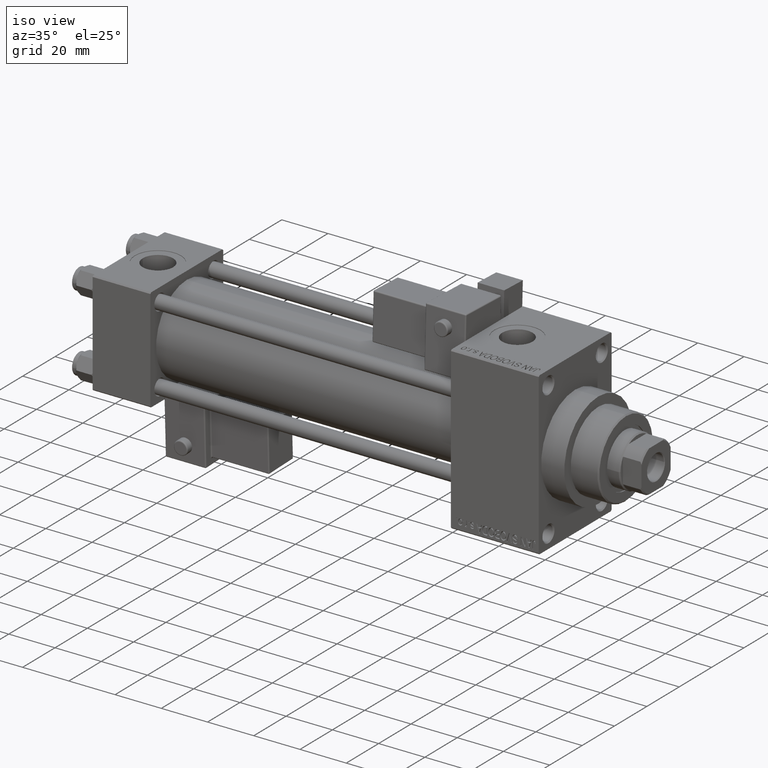
[diagram: clean part render]
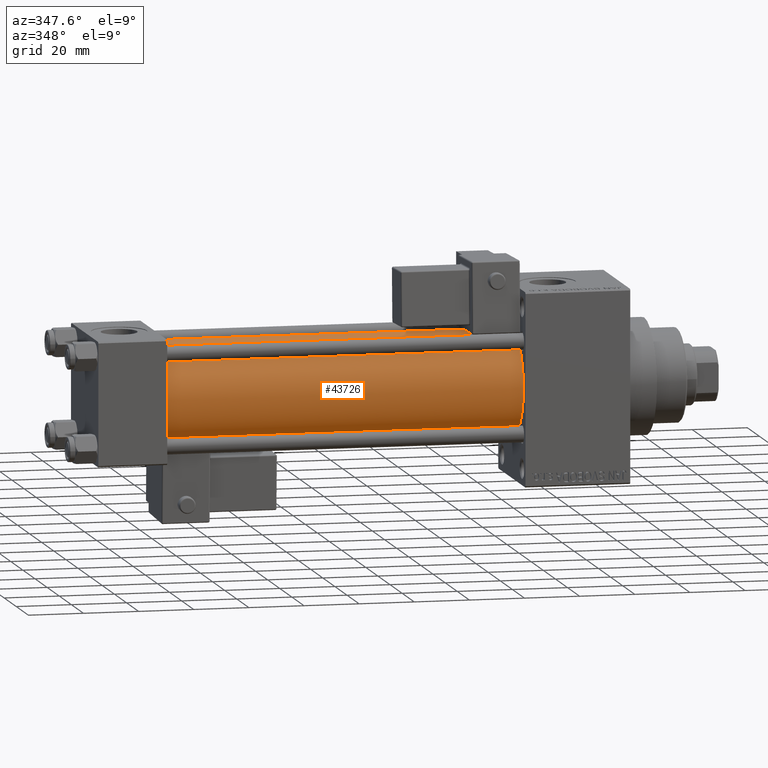
[diagram: tour spotlight — one face highlighted and labeled with its STEP entity id]
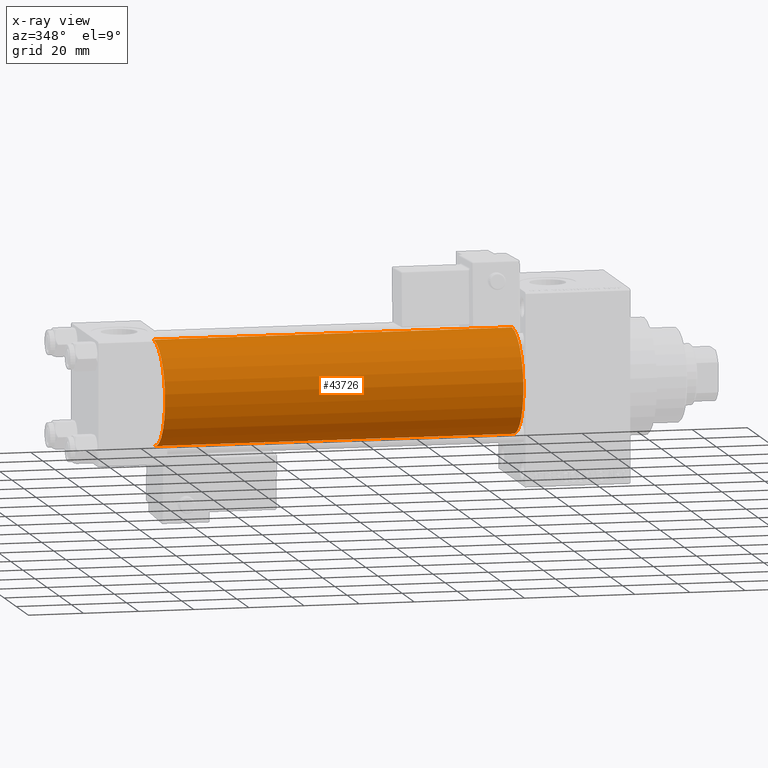
[diagram: x-ray of the same camera — body ghosted, this tour face saturated]
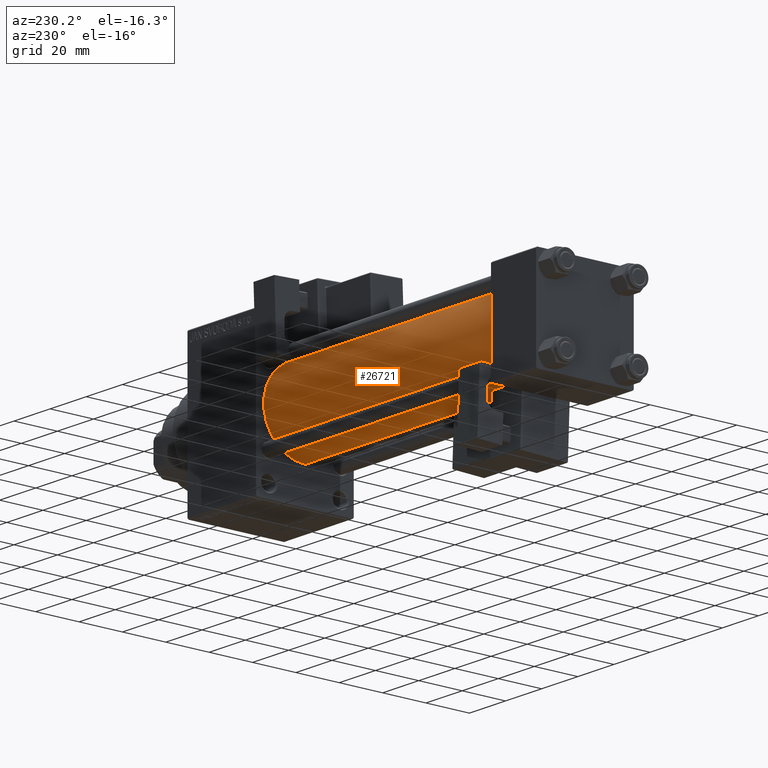
[diagram: tour spotlight — one face highlighted and labeled with its STEP entity id]
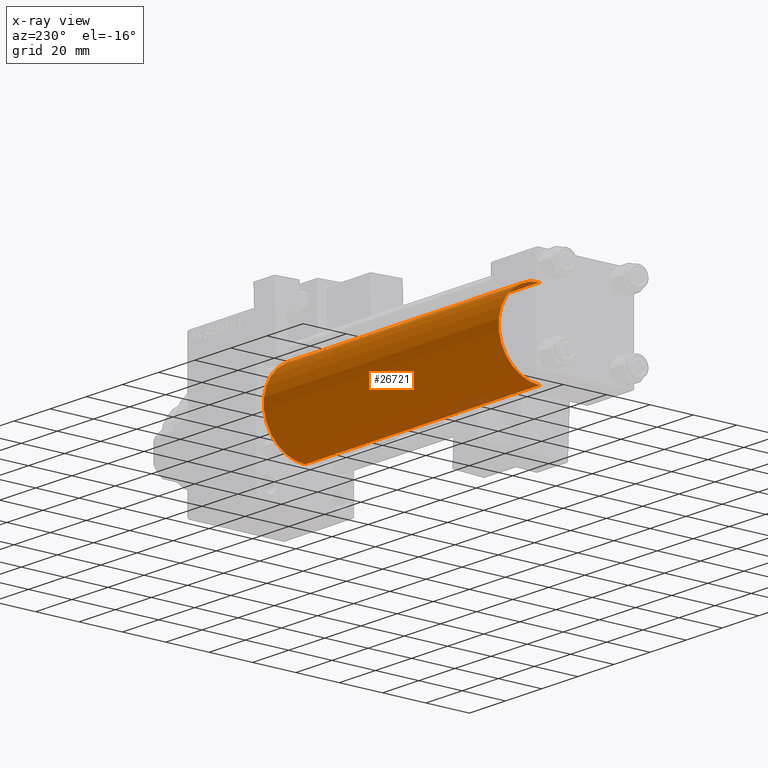
[diagram: x-ray of the same camera — body ghosted, this tour face saturated]
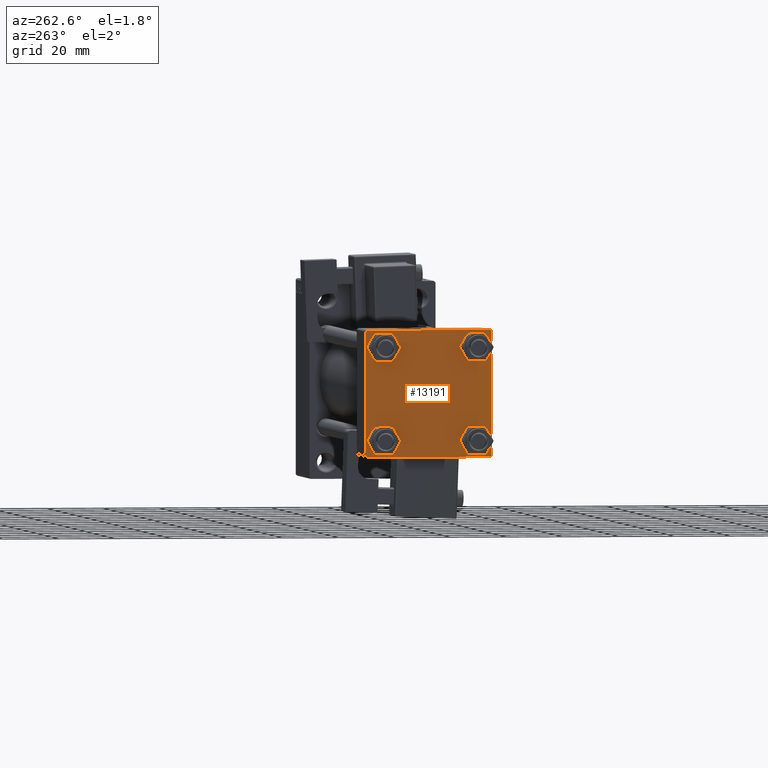
[diagram: tour spotlight — one face highlighted and labeled with its STEP entity id]
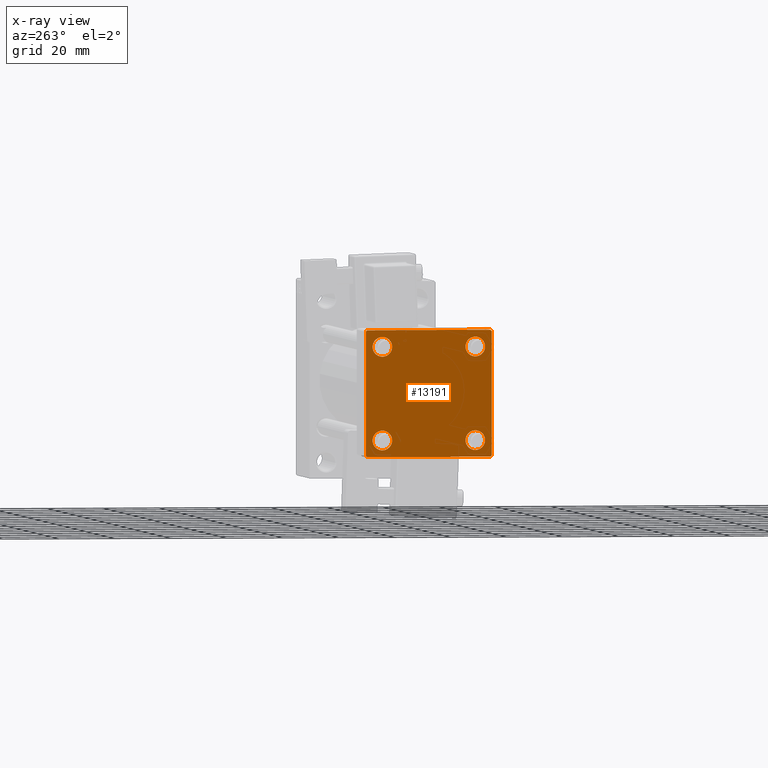
[diagram: x-ray of the same camera — body ghosted, this tour face saturated]
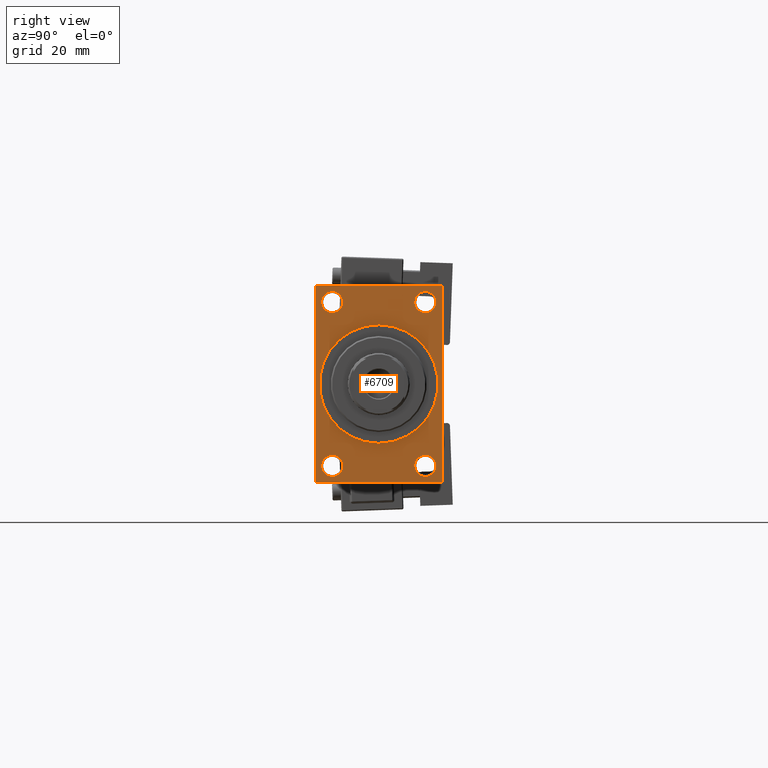
[diagram: tour spotlight — one face highlighted and labeled with its STEP entity id]
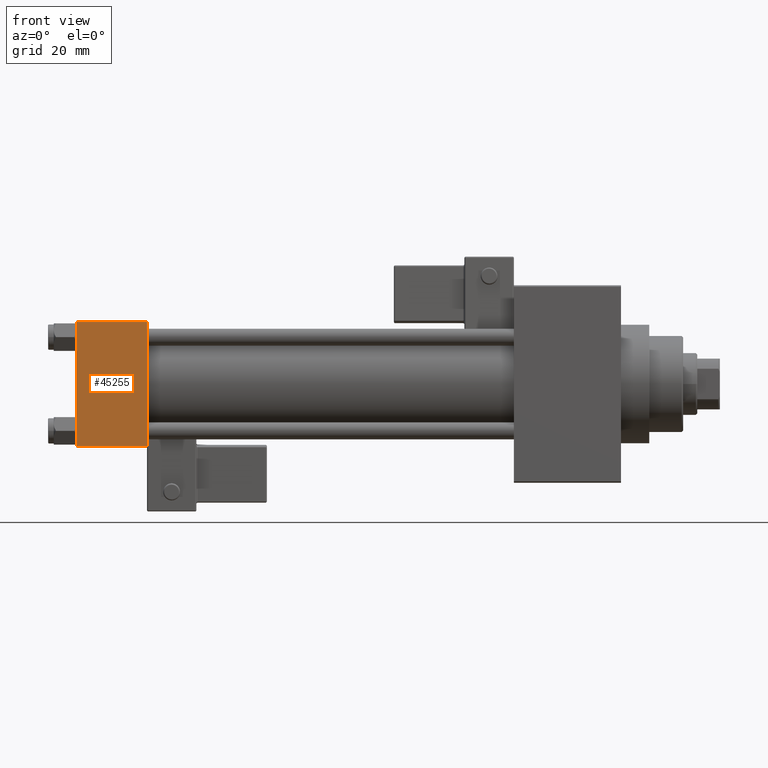
[diagram: tour spotlight — one face highlighted and labeled with its STEP entity id]
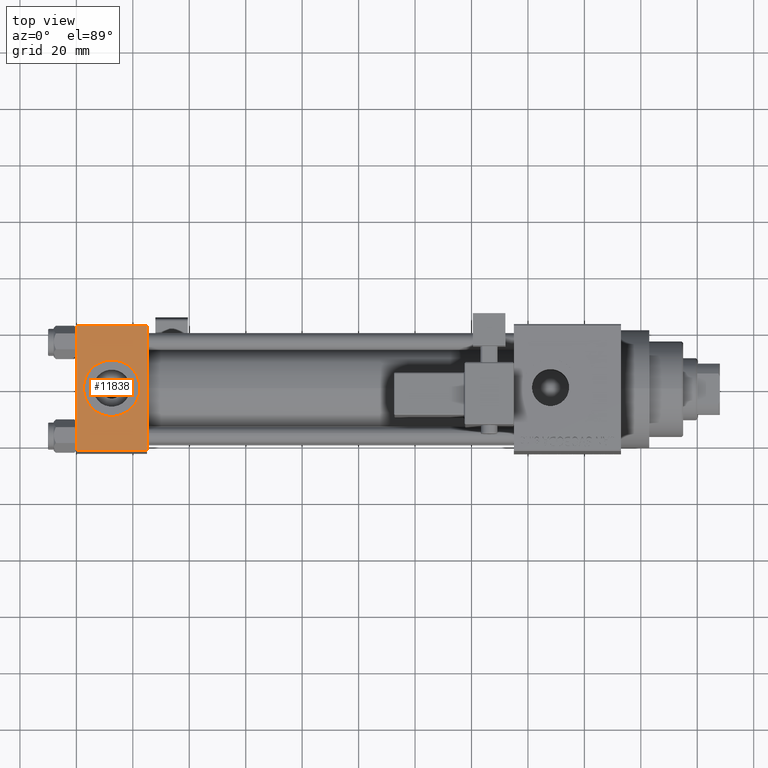
[diagram: tour spotlight — one face highlighted and labeled with its STEP entity id]
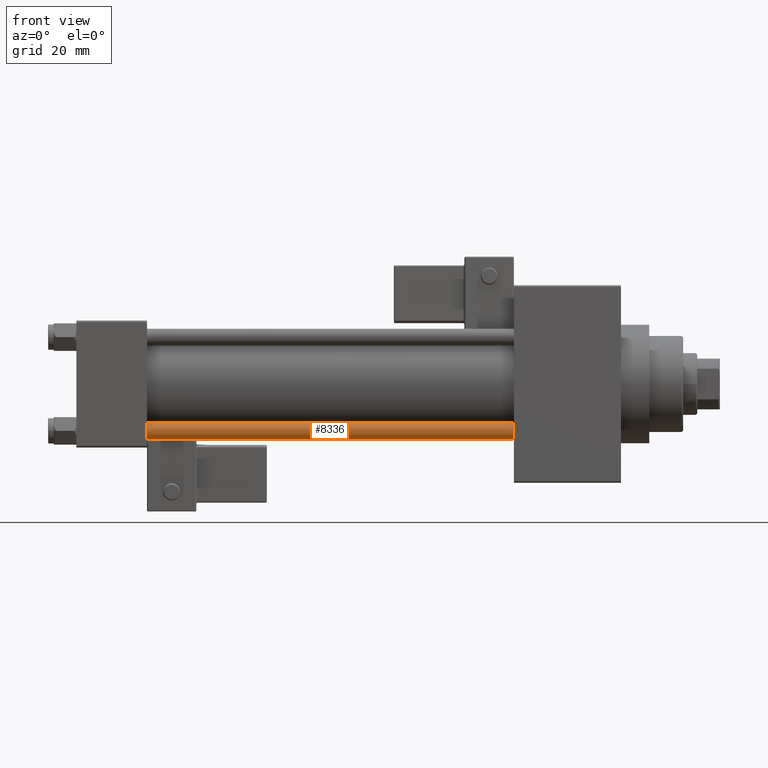
[diagram: tour spotlight — one face highlighted and labeled with its STEP entity id]
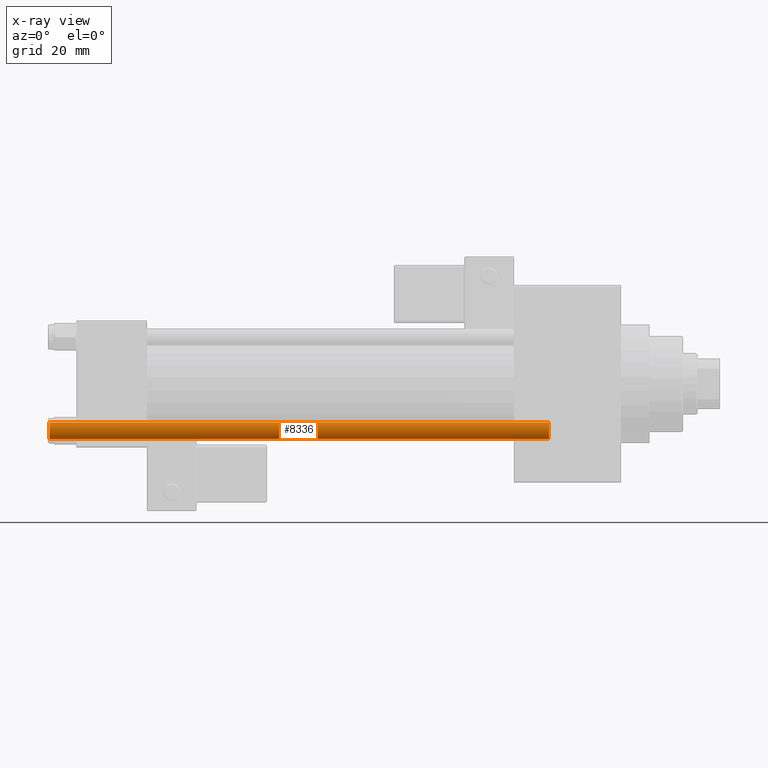
[diagram: x-ray of the same camera — body ghosted, this tour face saturated]
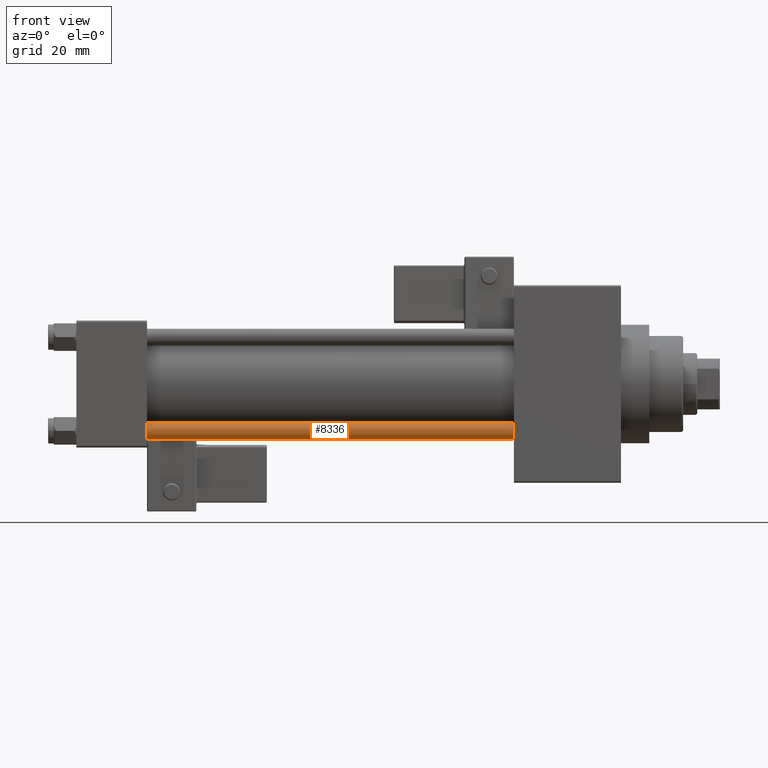
[diagram: tour spotlight — one face highlighted and labeled with its STEP entity id]
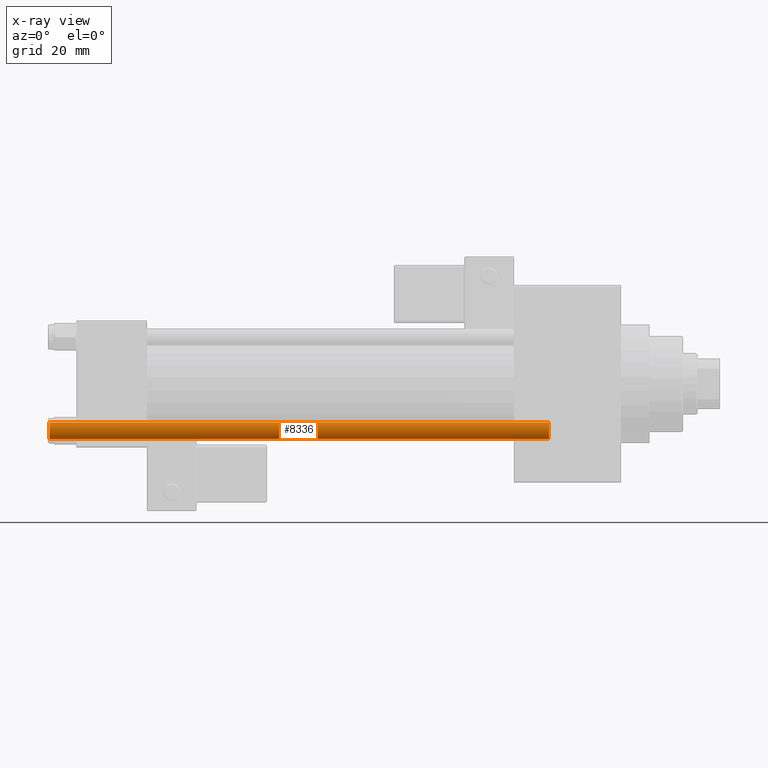
[diagram: x-ray of the same camera — body ghosted, this tour face saturated]
A machine part: a face-by-face anatomy tour. The part has 1260 B-rep faces; the first image is the clean iso view, then the 8 largest visible faces are spotlighted one at a time (largest first), each with its STEP entity span.

Face 1 — auxiliary view, entity #43726. An x-ray twin of the same camera follows (body ghosted, this face saturated) — the face is partly hidden behind the body. In plain terms, the highlighted cylindrical surface (partial cylindrical patch) has radius 19 mm, axis along (-1, -0, -0).
Definition (entity closure, byte-faithful):
#910 = AXIS2_PLACEMENT_3D ( 'NONE', #38873, #23373, #38625 ) ;
#1424 = AXIS2_PLACEMENT_3D ( 'NONE', #4793, #34783, #4301 ) ;
#2247 = ORIENTED_EDGE ( 'NONE', *, *, #10266, .T. ) ;
#4301 = DIRECTION ( 'NONE',  ( 0.000000000000000000, 0.000000000000000000, 1.000000000000000000 ) ) ;
#4793 = CARTESIAN_POINT ( 'NONE',  ( 24.99999999999999289, -2.602085213965210642E-15, 0.000000000000000000 ) ) ;
#6870 = VERTEX_POINT ( 'NONE', #13797 ) ;
#7543 = VERTEX_POINT ( 'NONE', #48578 ) ;
#7656 = DIRECTION ( 'NONE',  ( -1.000000000000000000, -0.000000000000000000, -0.000000000000000000 ) ) ;
#7948 = ORIENTED_EDGE ( 'NONE', *, *, #11229, .F. ) ;
#8027 = ORIENTED_EDGE ( 'NONE', *, *, #35221, .T. ) ;
#9000 = CYLINDRICAL_SURFACE ( 'NONE', #23138, 19.00000000000000000 ) ;
#10266 = EDGE_CURVE ( 'NONE', #7543, #18222, #33646, .T. ) ;
#10437 = CARTESIAN_POINT ( 'NONE',  ( 155.0000000000000000, -2.752562955852396712E-16, -19.00000000000000000 ) ) ;
#11229 = EDGE_CURVE ( 'NONE', #7543, #28638, #47215, .T. ) ;
#13797 = CARTESIAN_POINT ( 'NONE',  ( 24.99999999999999289, -2.752562955852396712E-16, -19.00000000000000000 ) ) ;
#15902 = CARTESIAN_POINT ( 'NONE',  ( 24.99999999999999289, -2.602085213965210642E-15, 19.00000000000000000 ) ) ;
#16499 = CARTESIAN_POINT ( 'NONE',  ( 155.0000000000000000, -2.602085213965210642E-15, 0.000000000000000000 ) ) ;
#18222 = VERTEX_POINT ( 'NONE', #15902 ) ;
#23138 = AXIS2_PLACEMENT_3D ( 'NONE', #16499, #46978, #28473 ) ;
#23373 = DIRECTION ( 'NONE',  ( 1.000000000000000000, 0.000000000000000000, 0.000000000000000000 ) ) ;
#27734 = FACE_OUTER_BOUND ( 'NONE', #32915, .T. ) ;
#28473 = DIRECTION ( 'NONE',  ( 0.000000000000000000, 0.000000000000000000, 1.000000000000000000 ) ) ;
#28638 = VERTEX_POINT ( 'NONE', #34428 ) ;
#32528 = CIRCLE ( 'NONE', #1424, 19.00000000000000000 ) ;
#32915 = EDGE_LOOP ( 'NONE', ( #35668, #7948, #2247, #8027 ) ) ;
#33646 = LINE ( 'NONE', #38145, #40799 ) ;
#34428 = CARTESIAN_POINT ( 'NONE',  ( 155.0000000000000000, -2.752562955852396712E-16, -19.00000000000000000 ) ) ;
#34783 = DIRECTION ( 'NONE',  ( 1.000000000000000000, -0.000000000000000000, 0.000000000000000000 ) ) ;
#35221 = EDGE_CURVE ( 'NONE', #18222, #6870, #32528, .T. ) ;
#35668 = ORIENTED_EDGE ( 'NONE', *, *, #38759, .F. ) ;
#37685 = DIRECTION ( 'NONE',  ( -1.000000000000000000, -0.000000000000000000, -0.000000000000000000 ) ) ;
#38145 = CARTESIAN_POINT ( 'NONE',  ( 155.0000000000000000, -2.602085213965210642E-15, 19.00000000000000000 ) ) ;
#38625 = DIRECTION ( 'NONE',  ( 0.000000000000000000, 0.000000000000000000, -1.000000000000000000 ) ) ;
#38759 = EDGE_CURVE ( 'NONE', #28638, #6870, #44943, .T. ) ;
#38873 = CARTESIAN_POINT ( 'NONE',  ( 155.0000000000000000, -2.602085213965210642E-15, 0.000000000000000000 ) ) ;
#40799 = VECTOR ( 'NONE', #7656, 1000.000000000000000 ) ;
#43726 = ADVANCED_FACE ( 'NONE', ( #27734 ), #9000, .T. ) ;
#44545 = VECTOR ( 'NONE', #37685, 1000.000000000000000 ) ;
#44943 = LINE ( 'NONE', #10437, #44545 ) ;
#46978 = DIRECTION ( 'NONE',  ( -1.000000000000000000, -0.000000000000000000, -0.000000000000000000 ) ) ;
#47215 = CIRCLE ( 'NONE', #910, 19.00000000000000000 ) ;
#48578 = CARTESIAN_POINT ( 'NONE',  ( 155.0000000000000000, -2.602085213965210642E-15, 19.00000000000000000 ) ) ;

Face 2 — auxiliary view, entity #26721. An x-ray twin of the same camera follows (body ghosted, this face saturated) — the face is partly hidden behind the body. In plain terms, the highlighted cylindrical surface (partial cylindrical patch) has radius 19 mm, axis along (-1, -0, -0).
Definition (entity closure, byte-faithful):
#600 = CARTESIAN_POINT ( 'NONE',  ( 155.0000000000000000, -2.602085213965210642E-15, 0.000000000000000000 ) ) ;
#2112 = AXIS2_PLACEMENT_3D ( 'NONE', #600, #31077, #12092 ) ;
#3553 = ORIENTED_EDGE ( 'NONE', *, *, #10266, .F. ) ;
#4088 = CIRCLE ( 'NONE', #43981, 19.00000000000000000 ) ;
#4358 = FACE_OUTER_BOUND ( 'NONE', #8754, .T. ) ;
#6870 = VERTEX_POINT ( 'NONE', #13797 ) ;
#7118 = CYLINDRICAL_SURFACE ( 'NONE', #2112, 19.00000000000000000 ) ;
#7543 = VERTEX_POINT ( 'NONE', #48578 ) ;
#7656 = DIRECTION ( 'NONE',  ( -1.000000000000000000, -0.000000000000000000, -0.000000000000000000 ) ) ;
#8754 = EDGE_LOOP ( 'NONE', ( #47797, #48830, #23309, #3553 ) ) ;
#10266 = EDGE_CURVE ( 'NONE', #7543, #18222, #33646, .T. ) ;
#10437 = CARTESIAN_POINT ( 'NONE',  ( 155.0000000000000000, -2.752562955852396712E-16, -19.00000000000000000 ) ) ;
#12092 = DIRECTION ( 'NONE',  ( 0.000000000000000000, 0.000000000000000000, 1.000000000000000000 ) ) ;
#13797 = CARTESIAN_POINT ( 'NONE',  ( 24.99999999999999289, -2.752562955852396712E-16, -19.00000000000000000 ) ) ;
#14637 = CARTESIAN_POINT ( 'NONE',  ( 155.0000000000000000, -2.602085213965210642E-15, 0.000000000000000000 ) ) ;
#15552 = EDGE_CURVE ( 'NONE', #6870, #18222, #24204, .T. ) ;
#15902 = CARTESIAN_POINT ( 'NONE',  ( 24.99999999999999289, -2.602085213965210642E-15, 19.00000000000000000 ) ) ;
#18222 = VERTEX_POINT ( 'NONE', #15902 ) ;
#23309 = ORIENTED_EDGE ( 'NONE', *, *, #15552, .T. ) ;
#24204 = CIRCLE ( 'NONE', #26581, 19.00000000000000000 ) ;
#26581 = AXIS2_PLACEMENT_3D ( 'NONE', #31427, #38199, #26932 ) ;
#26721 = ADVANCED_FACE ( 'NONE', ( #4358 ), #7118, .T. ) ;
#26932 = DIRECTION ( 'NONE',  ( 0.000000000000000000, 0.000000000000000000, 1.000000000000000000 ) ) ;
#28638 = VERTEX_POINT ( 'NONE', #34428 ) ;
#31077 = DIRECTION ( 'NONE',  ( -1.000000000000000000, -0.000000000000000000, -0.000000000000000000 ) ) ;
#31427 = CARTESIAN_POINT ( 'NONE',  ( 24.99999999999999289, -2.602085213965210642E-15, 0.000000000000000000 ) ) ;
#33646 = LINE ( 'NONE', #38145, #40799 ) ;
#34428 = CARTESIAN_POINT ( 'NONE',  ( 155.0000000000000000, -2.752562955852396712E-16, -19.00000000000000000 ) ) ;
#37384 = DIRECTION ( 'NONE',  ( 1.000000000000000000, 0.000000000000000000, 0.000000000000000000 ) ) ;
#37685 = DIRECTION ( 'NONE',  ( -1.000000000000000000, -0.000000000000000000, -0.000000000000000000 ) ) ;
#38145 = CARTESIAN_POINT ( 'NONE',  ( 155.0000000000000000, -2.602085213965210642E-15, 19.00000000000000000 ) ) ;
#38199 = DIRECTION ( 'NONE',  ( 1.000000000000000000, -0.000000000000000000, 0.000000000000000000 ) ) ;
#38759 = EDGE_CURVE ( 'NONE', #28638, #6870, #44943, .T. ) ;
#40799 = VECTOR ( 'NONE', #7656, 1000.000000000000000 ) ;
#41140 = DIRECTION ( 'NONE',  ( 0.000000000000000000, 0.000000000000000000, -1.000000000000000000 ) ) ;
#43981 = AXIS2_PLACEMENT_3D ( 'NONE', #14637, #37384, #41140 ) ;
#44545 = VECTOR ( 'NONE', #37685, 1000.000000000000000 ) ;
#44943 = LINE ( 'NONE', #10437, #44545 ) ;
#46095 = EDGE_CURVE ( 'NONE', #28638, #7543, #4088, .T. ) ;
#47797 = ORIENTED_EDGE ( 'NONE', *, *, #46095, .F. ) ;
#48578 = CARTESIAN_POINT ( 'NONE',  ( 155.0000000000000000, -2.602085213965210642E-15, 19.00000000000000000 ) ) ;
#48830 = ORIENTED_EDGE ( 'NONE', *, *, #38759, .T. ) ;

Face 3 — auxiliary view, entity #13191. An x-ray twin of the same camera follows (body ghosted, this face saturated) — the face is partly hidden behind the body. In plain terms, the highlighted planar face has unit normal (-1, 0, 0).
Definition (entity closure, byte-faithful):
#196 = AXIS2_PLACEMENT_3D ( 'NONE', #33923, #14440, #29426 ) ;
#615 = CIRCLE ( 'NONE', #29319, 3.499999999999996003 ) ;
#836 = EDGE_CURVE ( 'NONE', #14477, #24133, #28918, .T. ) ;
#1036 = ORIENTED_EDGE ( 'NONE', *, *, #35478, .T. ) ;
#1487 = VECTOR ( 'NONE', #43120, 999.9999999999998863 ) ;
#1676 = CARTESIAN_POINT ( 'NONE',  ( 0.000000000000000000, -16.59999999999999076, 20.10000000000000853 ) ) ;
#1996 = DIRECTION ( 'NONE',  ( 1.000000000000000000, -0.000000000000000000, 0.000000000000000000 ) ) ;
#2472 = VECTOR ( 'NONE', #26859, 1000.000000000000114 ) ;
#3264 = AXIS2_PLACEMENT_3D ( 'NONE', #14791, #45524, #44784 ) ;
#3597 = CARTESIAN_POINT ( 'NONE',  ( 0.000000000000000000, 22.50000000000000000, 22.50000000000000355 ) ) ;
#3612 = CARTESIAN_POINT ( 'NONE',  ( 0.000000000000000000, -22.50000000000000000, 22.50000000000000000 ) ) ;
#3646 = ORIENTED_EDGE ( 'NONE', *, *, #25532, .T. ) ;
#3683 = PLANE ( 'NONE',  #196 ) ;
#3906 = ORIENTED_EDGE ( 'NONE', *, *, #4552, .T. ) ;
#4127 = VECTOR ( 'NONE', #31819, 1000.000000000000000 ) ;
#4215 = CARTESIAN_POINT ( 'NONE',  ( 0.000000000000000000, 16.59999999999999787, 13.10000000000000675 ) ) ;
#4510 = VECTOR ( 'NONE', #34838, 1000.000000000000000 ) ;
#4552 = EDGE_CURVE ( 'NONE', #47466, #36840, #12319, .T. ) ;
#4702 = CARTESIAN_POINT ( 'NONE',  ( 0.000000000000000000, -16.59999999999999076, -20.10000000000000497 ) ) ;
#5532 = DIRECTION ( 'NONE',  ( 0.000000000000000000, 0.000000000000000000, 1.000000000000000000 ) ) ;
#5874 = VECTOR ( 'NONE', #11590, 1000.000000000000000 ) ;
#6360 = DIRECTION ( 'NONE',  ( 0.000000000000000000, 0.000000000000000000, 1.000000000000000000 ) ) ;
#7340 = VERTEX_POINT ( 'NONE', #17486 ) ;
#7542 = EDGE_CURVE ( 'NONE', #40254, #15467, #37974, .T. ) ;
#7803 = CIRCLE ( 'NONE', #15757, 3.499999999999996003 ) ;
#8866 = CARTESIAN_POINT ( 'NONE',  ( -0.000000000000000000, -22.24999999999984013, 22.25000000000015277 ) ) ;
#9068 = DIRECTION ( 'NONE',  ( 0.000000000000000000, 0.000000000000000000, 1.000000000000000000 ) ) ;
#9370 = AXIS2_PLACEMENT_3D ( 'NONE', #38630, #30626, #23132 ) ;
#9904 = DIRECTION ( 'NONE',  ( 0.000000000000000000, 0.000000000000000000, 1.000000000000000000 ) ) ;
#9985 = ORIENTED_EDGE ( 'NONE', *, *, #11391, .T. ) ;
#10562 = VECTOR ( 'NONE', #36666, 1000.000000000000000 ) ;
#10628 = CARTESIAN_POINT ( 'NONE',  ( 0.000000000000000000, -16.59999999999999076, 13.10000000000001030 ) ) ;
#10690 = EDGE_CURVE ( 'NONE', #23210, #42208, #24805, .T. ) ;
#11002 = VECTOR ( 'NONE', #15863, 1000.000000000000000 ) ;
#11378 = CARTESIAN_POINT ( 'NONE',  ( 0.000000000000000000, 22.50000000000000000, 22.50000000000000355 ) ) ;
#11391 = EDGE_CURVE ( 'NONE', #24133, #12439, #34832, .T. ) ;
#11590 = DIRECTION ( 'NONE',  ( 0.000000000000000000, -1.000000000000000000, -7.709882115452476934E-17 ) ) ;
#11599 = LINE ( 'NONE', #29592, #26281 ) ;
#11648 = AXIS2_PLACEMENT_3D ( 'NONE', #29336, #33337, #6360 ) ;
#11865 = LINE ( 'NONE', #11378, #11002 ) ;
#12138 = ORIENTED_EDGE ( 'NONE', *, *, #40116, .T. ) ;
#12217 = ORIENTED_EDGE ( 'NONE', *, *, #28883, .T. ) ;
#12319 = CIRCLE ( 'NONE', #40262, 3.499999999999996003 ) ;
#12439 = VERTEX_POINT ( 'NONE', #38656 ) ;
#12992 = CARTESIAN_POINT ( 'NONE',  ( 0.000000000000000000, 22.50000000000000000, -21.99999999999996803 ) ) ;
#13090 = CARTESIAN_POINT ( 'NONE',  ( 0.000000000000000000, 22.50000000000000000, 21.99999999999999645 ) ) ;
#13191 = ADVANCED_FACE ( 'NONE', ( #25185, #17685, #13946, #28691, #43953 ), #3683, .T. ) ;
#13671 = CARTESIAN_POINT ( 'NONE',  ( 0.000000000000000000, -22.50000000000000000, -21.99999999999997158 ) ) ;
#13840 = CARTESIAN_POINT ( 'NONE',  ( 0.000000000000000000, -21.99999999999997868, 22.50000000000000000 ) ) ;
#13860 = EDGE_LOOP ( 'NONE', ( #1036, #3906 ) ) ;
#13946 = FACE_BOUND ( 'NONE', #13860, .T. ) ;
#14136 = CARTESIAN_POINT ( 'NONE',  ( 0.000000000000000000, 16.59999999999999787, -16.60000000000000497 ) ) ;
#14294 = ORIENTED_EDGE ( 'NONE', *, *, #10690, .T. ) ;
#14440 = DIRECTION ( 'NONE',  ( -1.000000000000000000, 0.000000000000000000, -0.000000000000000000 ) ) ;
#14477 = VERTEX_POINT ( 'NONE', #12992 ) ;
#14660 = VERTEX_POINT ( 'NONE', #13671 ) ;
#14791 = CARTESIAN_POINT ( 'NONE',  ( 0.000000000000000000, 16.59999999999999787, 16.60000000000000497 ) ) ;
#15467 = VERTEX_POINT ( 'NONE', #4702 ) ;
#15757 = AXIS2_PLACEMENT_3D ( 'NONE', #14136, #44387, #9904 ) ;
#15863 = DIRECTION ( 'NONE',  ( 0.000000000000000000, 0.000000000000000000, -1.000000000000000000 ) ) ;
#16012 = EDGE_CURVE ( 'NONE', #7340, #20110, #38823, .T. ) ;
#17106 = LINE ( 'NONE', #8866, #1487 ) ;
#17486 = CARTESIAN_POINT ( 'NONE',  ( 0.000000000000000000, 21.99999999999999289, 22.50000000000000355 ) ) ;
#17685 = FACE_BOUND ( 'NONE', #43590, .T. ) ;
#17832 = CARTESIAN_POINT ( 'NONE',  ( 0.000000000000000000, -16.59999999999999076, -13.10000000000001030 ) ) ;
#19267 = ORIENTED_EDGE ( 'NONE', *, *, #16012, .F. ) ;
#19374 = EDGE_LOOP ( 'NONE', ( #31412, #37368, #9985, #32443, #37358, #12138, #19267, #44660 ) ) ;
#20110 = VERTEX_POINT ( 'NONE', #13840 ) ;
#21418 = CARTESIAN_POINT ( 'NONE',  ( 0.000000000000000000, 22.25000000000014566, -22.24999999999984013 ) ) ;
#21504 = DIRECTION ( 'NONE',  ( 1.000000000000000000, -0.000000000000000000, 0.000000000000000000 ) ) ;
#23094 = CARTESIAN_POINT ( 'NONE',  ( 0.000000000000000000, 16.59999999999999787, -20.10000000000000142 ) ) ;
#23132 = DIRECTION ( 'NONE',  ( 0.000000000000000000, 0.000000000000000000, 1.000000000000000000 ) ) ;
#23210 = VERTEX_POINT ( 'NONE', #4215 ) ;
#24133 = VERTEX_POINT ( 'NONE', #48407 ) ;
#24805 = CIRCLE ( 'NONE', #3264, 3.499999999999996003 ) ;
#25185 = FACE_BOUND ( 'NONE', #44315, .T. ) ;
#25532 = EDGE_CURVE ( 'NONE', #42208, #23210, #42797, .T. ) ;
#26281 = VECTOR ( 'NONE', #37602, 1000.000000000000000 ) ;
#26662 = EDGE_CURVE ( 'NONE', #27050, #14660, #30091, .T. ) ;
#26859 = DIRECTION ( 'NONE',  ( 0.000000000000000000, 0.7071067811865474617, -0.7071067811865474617 ) ) ;
#26992 = CARTESIAN_POINT ( 'NONE',  ( 0.000000000000000000, -16.59999999999999076, -16.60000000000000853 ) ) ;
#27050 = VERTEX_POINT ( 'NONE', #42785 ) ;
#27575 = CARTESIAN_POINT ( 'NONE',  ( 0.000000000000000000, 22.50000000000000000, -22.49999999999999645 ) ) ;
#28691 = FACE_BOUND ( 'NONE', #47492, .T. ) ;
#28883 = EDGE_CURVE ( 'NONE', #33001, #35567, #30888, .T. ) ;
#28918 = LINE ( 'NONE', #21418, #10562 ) ;
#29319 = AXIS2_PLACEMENT_3D ( 'NONE', #39805, #35055, #9068 ) ;
#29334 = EDGE_CURVE ( 'NONE', #35567, #33001, #615, .T. ) ;
#29336 = CARTESIAN_POINT ( 'NONE',  ( 0.000000000000000000, -16.59999999999999076, -16.60000000000000853 ) ) ;
#29426 = DIRECTION ( 'NONE',  ( -0.000000000000000000, 0.000000000000000000, 1.000000000000000000 ) ) ;
#29592 = CARTESIAN_POINT ( 'NONE',  ( 0.000000000000000000, -22.25000000000014566, -22.24999999999984013 ) ) ;
#30091 = LINE ( 'NONE', #3612, #4510 ) ;
#30626 = DIRECTION ( 'NONE',  ( 1.000000000000000000, -0.000000000000000000, 0.000000000000000000 ) ) ;
#30888 = CIRCLE ( 'NONE', #9370, 3.499999999999996003 ) ;
#30932 = ORIENTED_EDGE ( 'NONE', *, *, #38151, .T. ) ;
#31349 = LINE ( 'NONE', #46606, #2472 ) ;
#31412 = ORIENTED_EDGE ( 'NONE', *, *, #39153, .T. ) ;
#31819 = DIRECTION ( 'NONE',  ( 0.000000000000000000, -1.000000000000000000, -2.312964634635742957E-16 ) ) ;
#32443 = ORIENTED_EDGE ( 'NONE', *, *, #33891, .T. ) ;
#33001 = VERTEX_POINT ( 'NONE', #1676 ) ;
#33337 = DIRECTION ( 'NONE',  ( 1.000000000000000000, -0.000000000000000000, 0.000000000000000000 ) ) ;
#33891 = EDGE_CURVE ( 'NONE', #12439, #14660, #11599, .T. ) ;
#33923 = CARTESIAN_POINT ( 'NONE',  ( 0.000000000000000000, 0.000000000000000000, 0.000000000000000000 ) ) ;
#34832 = LINE ( 'NONE', #27575, #4127 ) ;
#34838 = DIRECTION ( 'NONE',  ( 0.000000000000000000, 0.000000000000000000, -1.000000000000000000 ) ) ;
#35055 = DIRECTION ( 'NONE',  ( 1.000000000000000000, -0.000000000000000000, 0.000000000000000000 ) ) ;
#35092 = VERTEX_POINT ( 'NONE', #13090 ) ;
#35478 = EDGE_CURVE ( 'NONE', #36840, #47466, #7803, .T. ) ;
#35567 = VERTEX_POINT ( 'NONE', #10628 ) ;
#35983 = CARTESIAN_POINT ( 'NONE',  ( 0.000000000000000000, 16.59999999999999787, 16.60000000000000497 ) ) ;
#36666 = DIRECTION ( 'NONE',  ( -0.000000000000000000, -0.7071067811865426878, -0.7071067811865524577 ) ) ;
#36840 = VERTEX_POINT ( 'NONE', #37820 ) ;
#37358 = ORIENTED_EDGE ( 'NONE', *, *, #26662, .F. ) ;
#37368 = ORIENTED_EDGE ( 'NONE', *, *, #836, .T. ) ;
#37602 = DIRECTION ( 'NONE',  ( 0.000000000000000000, -0.7071067811865426878, 0.7071067811865524577 ) ) ;
#37820 = CARTESIAN_POINT ( 'NONE',  ( 0.000000000000000000, 16.59999999999999787, -13.10000000000000675 ) ) ;
#37971 = ORIENTED_EDGE ( 'NONE', *, *, #29334, .T. ) ;
#37974 = CIRCLE ( 'NONE', #11648, 3.499999999999996003 ) ;
#38151 = EDGE_CURVE ( 'NONE', #15467, #40254, #43813, .T. ) ;
#38615 = CARTESIAN_POINT ( 'NONE',  ( 0.000000000000000000, 16.59999999999999787, 20.10000000000000142 ) ) ;
#38630 = CARTESIAN_POINT ( 'NONE',  ( 0.000000000000000000, -16.59999999999999076, 16.60000000000000853 ) ) ;
#38656 = CARTESIAN_POINT ( 'NONE',  ( 0.000000000000000000, -21.99999999999997158, -22.50000000000000711 ) ) ;
#38823 = LINE ( 'NONE', #3597, #5874 ) ;
#38998 = DIRECTION ( 'NONE',  ( 0.000000000000000000, 0.000000000000000000, 1.000000000000000000 ) ) ;
#39153 = EDGE_CURVE ( 'NONE', #35092, #14477, #11865, .T. ) ;
#39783 = CARTESIAN_POINT ( 'NONE',  ( 0.000000000000000000, 16.59999999999999787, -16.60000000000000497 ) ) ;
#39805 = CARTESIAN_POINT ( 'NONE',  ( 0.000000000000000000, -16.59999999999999076, 16.60000000000000853 ) ) ;
#40116 = EDGE_CURVE ( 'NONE', #27050, #20110, #17106, .T. ) ;
#40254 = VERTEX_POINT ( 'NONE', #17832 ) ;
#40262 = AXIS2_PLACEMENT_3D ( 'NONE', #39783, #21504, #5532 ) ;
#42208 = VERTEX_POINT ( 'NONE', #38615 ) ;
#42225 = ORIENTED_EDGE ( 'NONE', *, *, #7542, .T. ) ;
#42233 = AXIS2_PLACEMENT_3D ( 'NONE', #26992, #42252, #38998 ) ;
#42252 = DIRECTION ( 'NONE',  ( 1.000000000000000000, -0.000000000000000000, 0.000000000000000000 ) ) ;
#42760 = AXIS2_PLACEMENT_3D ( 'NONE', #35983, #1996, #43989 ) ;
#42785 = CARTESIAN_POINT ( 'NONE',  ( 0.000000000000000000, -22.50000000000000000, 22.00000000000000000 ) ) ;
#42797 = CIRCLE ( 'NONE', #42760, 3.499999999999996003 ) ;
#43120 = DIRECTION ( 'NONE',  ( -0.000000000000000000, 0.7071067811865525687, 0.7071067811865425767 ) ) ;
#43590 = EDGE_LOOP ( 'NONE', ( #42225, #30932 ) ) ;
#43813 = CIRCLE ( 'NONE', #42233, 3.499999999999996003 ) ;
#43953 = FACE_OUTER_BOUND ( 'NONE', #19374, .T. ) ;
#43989 = DIRECTION ( 'NONE',  ( 0.000000000000000000, 0.000000000000000000, 1.000000000000000000 ) ) ;
#44315 = EDGE_LOOP ( 'NONE', ( #12217, #37971 ) ) ;
#44387 = DIRECTION ( 'NONE',  ( 1.000000000000000000, -0.000000000000000000, 0.000000000000000000 ) ) ;
#44660 = ORIENTED_EDGE ( 'NONE', *, *, #46154, .T. ) ;
#44784 = DIRECTION ( 'NONE',  ( 0.000000000000000000, 0.000000000000000000, 1.000000000000000000 ) ) ;
#45524 = DIRECTION ( 'NONE',  ( 1.000000000000000000, -0.000000000000000000, 0.000000000000000000 ) ) ;
#46154 = EDGE_CURVE ( 'NONE', #7340, #35092, #31349, .T. ) ;
#46606 = CARTESIAN_POINT ( 'NONE',  ( 0.000000000000000000, 22.24999999999999645, 22.24999999999999645 ) ) ;
#47466 = VERTEX_POINT ( 'NONE', #23094 ) ;
#47492 = EDGE_LOOP ( 'NONE', ( #3646, #14294 ) ) ;
#48407 = CARTESIAN_POINT ( 'NONE',  ( 0.000000000000000000, 21.99999999999999289, -22.49999999999999645 ) ) ;

Face 4 — right view, entity #6709. In plain terms, the highlighted planar face has unit normal (-1, 0, 0).
Definition (entity closure, byte-faithful):
#430 = EDGE_CURVE ( 'NONE', #17038, #19987, #46753, .T. ) ;
#830 = EDGE_LOOP ( 'NONE', ( #44242, #40163 ) ) ;
#980 = VERTEX_POINT ( 'NONE', #32309 ) ;
#1785 = EDGE_CURVE ( 'NONE', #15075, #47065, #21803, .T. ) ;
#2358 = AXIS2_PLACEMENT_3D ( 'NONE', #10216, #10949, #26186 ) ;
#2370 = EDGE_CURVE ( 'NONE', #47065, #15075, #36157, .T. ) ;
#2700 = VERTEX_POINT ( 'NONE', #32699 ) ;
#2849 = FACE_BOUND ( 'NONE', #47098, .T. ) ;
#3540 = VECTOR ( 'NONE', #40400, 1000.000000000000000 ) ;
#3881 = ORIENTED_EDGE ( 'NONE', *, *, #35753, .T. ) ;
#4021 = CARTESIAN_POINT ( 'NONE',  ( 193.0000000000000000, 16.50000000000000000, -25.24999999999990763 ) ) ;
#4565 = EDGE_CURVE ( 'NONE', #2700, #7672, #48231, .T. ) ;
#4859 = CARTESIAN_POINT ( 'NONE',  ( 193.0000000000000000, -16.50000000000000000, 29.00000000000000711 ) ) ;
#5065 = EDGE_CURVE ( 'NONE', #5381, #17303, #9911, .T. ) ;
#5370 = CARTESIAN_POINT ( 'NONE',  ( 193.0000000000000000, -16.50000000000000000, -28.99999999999999289 ) ) ;
#5381 = VERTEX_POINT ( 'NONE', #38123 ) ;
#5422 = DIRECTION ( 'NONE',  ( -0.000000000000000000, 0.7071067811865474617, 0.7071067811865474617 ) ) ;
#5610 = DIRECTION ( 'NONE',  ( -1.000000000000000000, -0.000000000000000000, -0.000000000000000000 ) ) ;
#6201 = CIRCLE ( 'NONE', #34139, 3.750000000000086597 ) ;
#6316 = ORIENTED_EDGE ( 'NONE', *, *, #1785, .T. ) ;
#6709 = ADVANCED_FACE ( 'NONE', ( #29817, #32851, #2849, #25829, #48082, #29093 ), #17842, .F. ) ;
#7672 = VERTEX_POINT ( 'NONE', #12075 ) ;
#7687 = EDGE_CURVE ( 'NONE', #21120, #13093, #16814, .T. ) ;
#7935 = DIRECTION ( 'NONE',  ( 0.000000000000000000, -1.000000000000000000, 0.000000000000000000 ) ) ;
#8010 = CIRCLE ( 'NONE', #46291, 3.750000000000090150 ) ;
#8216 = CARTESIAN_POINT ( 'NONE',  ( 193.0000000000000000, 16.50000000000000000, 25.24999999999991829 ) ) ;
#8343 = CARTESIAN_POINT ( 'NONE',  ( 193.0000000000000000, 21.99999999999999645, -35.00000000000000000 ) ) ;
#8430 = VECTOR ( 'NONE', #28540, 1000.000000000000000 ) ;
#8549 = CARTESIAN_POINT ( 'NONE',  ( 193.0000000000000000, -22.00000000000000355, -35.00000000000000000 ) ) ;
#8741 = EDGE_CURVE ( 'NONE', #32953, #43250, #8910, .T. ) ;
#8910 = CIRCLE ( 'NONE', #43242, 3.750000000000090150 ) ;
#9513 = CARTESIAN_POINT ( 'NONE',  ( 193.0000000000000000, 22.49999999999999645, -35.00000000000000000 ) ) ;
#9911 = LINE ( 'NONE', #47402, #3540 ) ;
#9916 = LINE ( 'NONE', #21153, #23595 ) ;
#10216 = CARTESIAN_POINT ( 'NONE',  ( 193.0000000000000000, 16.50000000000000000, 29.00000000000000355 ) ) ;
#10508 = CARTESIAN_POINT ( 'NONE',  ( 193.0000000000000000, 21.99999999999999645, 35.00000000000000000 ) ) ;
#10815 = AXIS2_PLACEMENT_3D ( 'NONE', #19617, #46117, #19370 ) ;
#10949 = DIRECTION ( 'NONE',  ( -1.000000000000000000, -0.000000000000000000, -0.000000000000000000 ) ) ;
#11071 = ORIENTED_EDGE ( 'NONE', *, *, #31521, .T. ) ;
#11114 = DIRECTION ( 'NONE',  ( -1.000000000000000000, -0.000000000000000000, -0.000000000000000000 ) ) ;
#11516 = VERTEX_POINT ( 'NONE', #17800 ) ;
#11606 = CARTESIAN_POINT ( 'NONE',  ( 193.0000000000000000, -21.99999999999998934, 35.00000000000000000 ) ) ;
#11666 = CARTESIAN_POINT ( 'NONE',  ( 193.0000000000000000, 16.50000000000000000, -28.99999999999999289 ) ) ;
#11843 = ORIENTED_EDGE ( 'NONE', *, *, #430, .F. ) ;
#12075 = CARTESIAN_POINT ( 'NONE',  ( 193.0000000000000000, -16.50000000000000000, 25.24999999999992539 ) ) ;
#13093 = VERTEX_POINT ( 'NONE', #42725 ) ;
#14420 = ORIENTED_EDGE ( 'NONE', *, *, #7687, .F. ) ;
#15075 = VERTEX_POINT ( 'NONE', #4021 ) ;
#16814 = LINE ( 'NONE', #27808, #8430 ) ;
#16996 = AXIS2_PLACEMENT_3D ( 'NONE', #47566, #37491, #17080 ) ;
#17038 = VERTEX_POINT ( 'NONE', #8343 ) ;
#17080 = DIRECTION ( 'NONE',  ( 0.000000000000000000, 0.000000000000000000, 1.000000000000000000 ) ) ;
#17303 = VERTEX_POINT ( 'NONE', #20806 ) ;
#17408 = CARTESIAN_POINT ( 'NONE',  ( 193.0000000000000000, -22.50000000000000355, 34.50000000000000000 ) ) ;
#17800 = CARTESIAN_POINT ( 'NONE',  ( 193.0000000000000000, 0.000000000000000000, 21.00000000000000000 ) ) ;
#17842 = PLANE ( 'NONE',  #37941 ) ;
#17908 = VERTEX_POINT ( 'NONE', #8216 ) ;
#18324 = EDGE_LOOP ( 'NONE', ( #42544, #11071, #11843, #33499, #14420, #39562, #41087, #44792 ) ) ;
#18818 = VECTOR ( 'NONE', #46908, 1000.000000000000114 ) ;
#19108 = AXIS2_PLACEMENT_3D ( 'NONE', #4859, #25068, #28084 ) ;
#19370 = DIRECTION ( 'NONE',  ( 0.000000000000000000, 0.000000000000000000, -1.000000000000000000 ) ) ;
#19617 = CARTESIAN_POINT ( 'NONE',  ( 193.0000000000000000, 0.000000000000000000, 0.000000000000000000 ) ) ;
#19987 = VERTEX_POINT ( 'NONE', #39360 ) ;
#20464 = EDGE_CURVE ( 'NONE', #32484, #24432, #35168, .T. ) ;
#20625 = EDGE_CURVE ( 'NONE', #17038, #13093, #9916, .T. ) ;
#20669 = CIRCLE ( 'NONE', #19108, 3.750000000000083045 ) ;
#20675 = EDGE_CURVE ( 'NONE', #24432, #5381, #47406, .T. ) ;
#20766 = CARTESIAN_POINT ( 'NONE',  ( 193.0000000000000000, -16.50000000000000000, 29.00000000000000711 ) ) ;
#20806 = CARTESIAN_POINT ( 'NONE',  ( 193.0000000000000000, -22.50000000000000355, -34.50000000000000000 ) ) ;
#20968 = EDGE_CURVE ( 'NONE', #980, #11516, #34762, .T. ) ;
#21120 = VERTEX_POINT ( 'NONE', #22321 ) ;
#21153 = CARTESIAN_POINT ( 'NONE',  ( 193.0000000000000000, 22.49999999999999645, -34.50000000000000000 ) ) ;
#21260 = DIRECTION ( 'NONE',  ( -1.000000000000000000, -0.000000000000000000, -0.000000000000000000 ) ) ;
#21766 = AXIS2_PLACEMENT_3D ( 'NONE', #11666, #29907, #45168 ) ;
#21803 = CIRCLE ( 'NONE', #21766, 3.750000000000090150 ) ;
#22321 = CARTESIAN_POINT ( 'NONE',  ( 193.0000000000000000, 22.49999999999999645, 34.50000000000000000 ) ) ;
#23595 = VECTOR ( 'NONE', #5422, 1000.000000000000114 ) ;
#23962 = ORIENTED_EDGE ( 'NONE', *, *, #41576, .T. ) ;
#24293 = LINE ( 'NONE', #31792, #30234 ) ;
#24344 = DIRECTION ( 'NONE',  ( 0.000000000000000000, 0.000000000000000000, -1.000000000000000000 ) ) ;
#24432 = VERTEX_POINT ( 'NONE', #11606 ) ;
#25068 = DIRECTION ( 'NONE',  ( -1.000000000000000000, -0.000000000000000000, -0.000000000000000000 ) ) ;
#25568 = CARTESIAN_POINT ( 'NONE',  ( 193.0000000000000000, -16.50000000000000000, -32.75000000000008527 ) ) ;
#25829 = FACE_BOUND ( 'NONE', #40665, .T. ) ;
#26100 = DIRECTION ( 'NONE',  ( 0.000000000000000000, 0.000000000000000000, 1.000000000000000000 ) ) ;
#26186 = DIRECTION ( 'NONE',  ( 0.000000000000000000, 0.000000000000000000, 1.000000000000000000 ) ) ;
#26672 = CARTESIAN_POINT ( 'NONE',  ( 193.0000000000000000, 22.49999999999999645, 35.00000000000000000 ) ) ;
#27051 = AXIS2_PLACEMENT_3D ( 'NONE', #28095, #32832, #24344 ) ;
#27059 = EDGE_LOOP ( 'NONE', ( #35026, #34378 ) ) ;
#27808 = CARTESIAN_POINT ( 'NONE',  ( 193.0000000000000000, 22.49999999999999645, 35.00000000000000000 ) ) ;
#28084 = DIRECTION ( 'NONE',  ( 0.000000000000000000, 0.000000000000000000, 1.000000000000000000 ) ) ;
#28095 = CARTESIAN_POINT ( 'NONE',  ( 193.0000000000000000, 0.000000000000000000, 0.000000000000000000 ) ) ;
#28540 = DIRECTION ( 'NONE',  ( 0.000000000000000000, 0.000000000000000000, -1.000000000000000000 ) ) ;
#29093 = FACE_OUTER_BOUND ( 'NONE', #18324, .T. ) ;
#29329 = CARTESIAN_POINT ( 'NONE',  ( 193.0000000000000000, 0.000000000000000000, 0.000000000000000000 ) ) ;
#29817 = FACE_BOUND ( 'NONE', #31055, .T. ) ;
#29907 = DIRECTION ( 'NONE',  ( -1.000000000000000000, -0.000000000000000000, -0.000000000000000000 ) ) ;
#30212 = VECTOR ( 'NONE', #34301, 1000.000000000000114 ) ;
#30234 = VECTOR ( 'NONE', #47040, 1000.000000000000114 ) ;
#30539 = LINE ( 'NONE', #8549, #30212 ) ;
#31055 = EDGE_LOOP ( 'NONE', ( #23962, #48644 ) ) ;
#31521 = EDGE_CURVE ( 'NONE', #17303, #19987, #30539, .T. ) ;
#31792 = CARTESIAN_POINT ( 'NONE',  ( 193.0000000000000000, 21.99999999999999645, 35.00000000000000000 ) ) ;
#32102 = DIRECTION ( 'NONE',  ( 0.000000000000000000, 0.000000000000000000, 1.000000000000000000 ) ) ;
#32309 = CARTESIAN_POINT ( 'NONE',  ( 193.0000000000000000, 2.571758278209441661E-15, -21.00000000000000000 ) ) ;
#32484 = VERTEX_POINT ( 'NONE', #10508 ) ;
#32699 = CARTESIAN_POINT ( 'NONE',  ( 193.0000000000000000, -16.50000000000000000, 32.75000000000009237 ) ) ;
#32832 = DIRECTION ( 'NONE',  ( 1.000000000000000000, 0.000000000000000000, 0.000000000000000000 ) ) ;
#32851 = FACE_BOUND ( 'NONE', #830, .T. ) ;
#32953 = VERTEX_POINT ( 'NONE', #25568 ) ;
#33499 = ORIENTED_EDGE ( 'NONE', *, *, #20625, .T. ) ;
#33776 = EDGE_CURVE ( 'NONE', #38935, #17908, #47845, .T. ) ;
#33829 = ORIENTED_EDGE ( 'NONE', *, *, #33776, .T. ) ;
#34139 = AXIS2_PLACEMENT_3D ( 'NONE', #36750, #47997, #48483 ) ;
#34301 = DIRECTION ( 'NONE',  ( 0.000000000000000000, 0.7071067811865474617, -0.7071067811865474617 ) ) ;
#34378 = ORIENTED_EDGE ( 'NONE', *, *, #20968, .F. ) ;
#34603 = CARTESIAN_POINT ( 'NONE',  ( 193.0000000000000000, -16.50000000000000000, -28.99999999999999289 ) ) ;
#34762 = CIRCLE ( 'NONE', #10815, 21.00000000000000000 ) ;
#35026 = ORIENTED_EDGE ( 'NONE', *, *, #42380, .F. ) ;
#35168 = LINE ( 'NONE', #26672, #35545 ) ;
#35545 = VECTOR ( 'NONE', #7935, 1000.000000000000000 ) ;
#35753 = EDGE_CURVE ( 'NONE', #17908, #38935, #6201, .T. ) ;
#36157 = CIRCLE ( 'NONE', #16996, 3.750000000000090150 ) ;
#36507 = DIRECTION ( 'NONE',  ( 0.000000000000000000, 0.000000000000000000, 1.000000000000000000 ) ) ;
#36750 = CARTESIAN_POINT ( 'NONE',  ( 193.0000000000000000, 16.50000000000000000, 29.00000000000000355 ) ) ;
#36834 = DIRECTION ( 'NONE',  ( -1.000000000000000000, 0.000000000000000000, -0.000000000000000000 ) ) ;
#37491 = DIRECTION ( 'NONE',  ( -1.000000000000000000, -0.000000000000000000, -0.000000000000000000 ) ) ;
#37905 = EDGE_CURVE ( 'NONE', #21120, #32484, #24293, .T. ) ;
#37941 = AXIS2_PLACEMENT_3D ( 'NONE', #29329, #36834, #44349 ) ;
#38123 = CARTESIAN_POINT ( 'NONE',  ( 193.0000000000000000, -22.50000000000000355, 34.50000000000000000 ) ) ;
#38935 = VERTEX_POINT ( 'NONE', #39166 ) ;
#39166 = CARTESIAN_POINT ( 'NONE',  ( 193.0000000000000000, 16.50000000000000000, 32.75000000000009237 ) ) ;
#39360 = CARTESIAN_POINT ( 'NONE',  ( 193.0000000000000000, -21.99999999999998934, -35.00000000000000000 ) ) ;
#39562 = ORIENTED_EDGE ( 'NONE', *, *, #37905, .T. ) ;
#40163 = ORIENTED_EDGE ( 'NONE', *, *, #44510, .T. ) ;
#40400 = DIRECTION ( 'NONE',  ( 0.000000000000000000, 0.000000000000000000, -1.000000000000000000 ) ) ;
#40665 = EDGE_LOOP ( 'NONE', ( #3881, #33829 ) ) ;
#41087 = ORIENTED_EDGE ( 'NONE', *, *, #20464, .T. ) ;
#41325 = CARTESIAN_POINT ( 'NONE',  ( 193.0000000000000000, -16.50000000000000000, -25.24999999999990763 ) ) ;
#41576 = EDGE_CURVE ( 'NONE', #7672, #2700, #20669, .T. ) ;
#41667 = CARTESIAN_POINT ( 'NONE',  ( 193.0000000000000000, 16.50000000000000000, -32.75000000000008527 ) ) ;
#42127 = ORIENTED_EDGE ( 'NONE', *, *, #2370, .T. ) ;
#42380 = EDGE_CURVE ( 'NONE', #11516, #980, #45441, .T. ) ;
#42544 = ORIENTED_EDGE ( 'NONE', *, *, #5065, .T. ) ;
#42725 = CARTESIAN_POINT ( 'NONE',  ( 193.0000000000000000, 22.49999999999999645, -34.50000000000000000 ) ) ;
#43015 = DIRECTION ( 'NONE',  ( 0.000000000000000000, -1.000000000000000000, 0.000000000000000000 ) ) ;
#43242 = AXIS2_PLACEMENT_3D ( 'NONE', #5370, #5610, #32102 ) ;
#43250 = VERTEX_POINT ( 'NONE', #41325 ) ;
#44242 = ORIENTED_EDGE ( 'NONE', *, *, #8741, .T. ) ;
#44349 = DIRECTION ( 'NONE',  ( -0.000000000000000000, 0.000000000000000000, 1.000000000000000000 ) ) ;
#44510 = EDGE_CURVE ( 'NONE', #43250, #32953, #8010, .T. ) ;
#44792 = ORIENTED_EDGE ( 'NONE', *, *, #20675, .T. ) ;
#45168 = DIRECTION ( 'NONE',  ( 0.000000000000000000, 0.000000000000000000, 1.000000000000000000 ) ) ;
#45441 = CIRCLE ( 'NONE', #27051, 21.00000000000000000 ) ;
#45853 = AXIS2_PLACEMENT_3D ( 'NONE', #20766, #21260, #36507 ) ;
#46117 = DIRECTION ( 'NONE',  ( 1.000000000000000000, 0.000000000000000000, 0.000000000000000000 ) ) ;
#46291 = AXIS2_PLACEMENT_3D ( 'NONE', #34603, #11114, #26100 ) ;
#46753 = LINE ( 'NONE', #9513, #47245 ) ;
#46908 = DIRECTION ( 'NONE',  ( -0.000000000000000000, -0.7071067811865474617, -0.7071067811865474617 ) ) ;
#47040 = DIRECTION ( 'NONE',  ( 0.000000000000000000, -0.7071067811865474617, 0.7071067811865474617 ) ) ;
#47065 = VERTEX_POINT ( 'NONE', #41667 ) ;
#47098 = EDGE_LOOP ( 'NONE', ( #42127, #6316 ) ) ;
#47245 = VECTOR ( 'NONE', #43015, 1000.000000000000000 ) ;
#47402 = CARTESIAN_POINT ( 'NONE',  ( 193.0000000000000000, -22.50000000000000355, 35.00000000000000000 ) ) ;
#47406 = LINE ( 'NONE', #17408, #18818 ) ;
#47566 = CARTESIAN_POINT ( 'NONE',  ( 193.0000000000000000, 16.50000000000000000, -28.99999999999999289 ) ) ;
#47845 = CIRCLE ( 'NONE', #2358, 3.750000000000086597 ) ;
#47997 = DIRECTION ( 'NONE',  ( -1.000000000000000000, -0.000000000000000000, -0.000000000000000000 ) ) ;
#48082 = FACE_BOUND ( 'NONE', #27059, .T. ) ;
#48231 = CIRCLE ( 'NONE', #45853, 3.750000000000083045 ) ;
#48483 = DIRECTION ( 'NONE',  ( 0.000000000000000000, 0.000000000000000000, 1.000000000000000000 ) ) ;
#48644 = ORIENTED_EDGE ( 'NONE', *, *, #4565, .T. ) ;

Face 5 — front view, entity #45255. In plain terms, the highlighted planar face has unit normal (0, 1, 0).
Definition (entity closure, byte-faithful):
#107 = LINE ( 'NONE', #26586, #6509 ) ;
#3136 = FACE_OUTER_BOUND ( 'NONE', #24844, .T. ) ;
#3612 = CARTESIAN_POINT ( 'NONE',  ( 0.000000000000000000, -22.50000000000000000, 22.50000000000000000 ) ) ;
#4510 = VECTOR ( 'NONE', #34838, 1000.000000000000000 ) ;
#5317 = DIRECTION ( 'NONE',  ( 0.000000000000000000, 0.000000000000000000, -1.000000000000000000 ) ) ;
#6352 = LINE ( 'NONE', #22332, #21978 ) ;
#6509 = VECTOR ( 'NONE', #45596, 1000.000000000000000 ) ;
#6752 = EDGE_CURVE ( 'NONE', #12432, #27050, #6352, .T. ) ;
#6811 = EDGE_CURVE ( 'NONE', #12432, #42625, #31552, .T. ) ;
#6823 = VECTOR ( 'NONE', #5317, 1000.000000000000000 ) ;
#11217 = AXIS2_PLACEMENT_3D ( 'NONE', #33371, #25612, #37622 ) ;
#12432 = VERTEX_POINT ( 'NONE', #23406 ) ;
#13671 = CARTESIAN_POINT ( 'NONE',  ( 0.000000000000000000, -22.50000000000000000, -21.99999999999997158 ) ) ;
#14660 = VERTEX_POINT ( 'NONE', #13671 ) ;
#21585 = DIRECTION ( 'NONE',  ( -1.000000000000000000, 0.000000000000000000, 0.000000000000000000 ) ) ;
#21978 = VECTOR ( 'NONE', #21585, 1000.000000000000000 ) ;
#22332 = CARTESIAN_POINT ( 'NONE',  ( 25.00000000000000000, -22.50000000000000000, 22.00000000000000000 ) ) ;
#22970 = ORIENTED_EDGE ( 'NONE', *, *, #6752, .T. ) ;
#23406 = CARTESIAN_POINT ( 'NONE',  ( 25.00000000000000000, -22.50000000000000000, 22.00000000000000000 ) ) ;
#24299 = CARTESIAN_POINT ( 'NONE',  ( 25.00000000000000000, -22.50000000000000000, 22.50000000000000000 ) ) ;
#24844 = EDGE_LOOP ( 'NONE', ( #40944, #38290, #41711, #22970 ) ) ;
#25612 = DIRECTION ( 'NONE',  ( -0.000000000000000000, 1.000000000000000000, 0.000000000000000000 ) ) ;
#26586 = CARTESIAN_POINT ( 'NONE',  ( 25.00000000000000000, -22.50000000000000000, -21.99999999999998579 ) ) ;
#26662 = EDGE_CURVE ( 'NONE', #27050, #14660, #30091, .T. ) ;
#27050 = VERTEX_POINT ( 'NONE', #42785 ) ;
#30091 = LINE ( 'NONE', #3612, #4510 ) ;
#31552 = LINE ( 'NONE', #24299, #6823 ) ;
#33371 = CARTESIAN_POINT ( 'NONE',  ( 25.00000000000000000, -22.50000000000000000, 22.50000000000000000 ) ) ;
#34838 = DIRECTION ( 'NONE',  ( 0.000000000000000000, 0.000000000000000000, -1.000000000000000000 ) ) ;
#37622 = DIRECTION ( 'NONE',  ( 0.000000000000000000, -0.000000000000000000, 1.000000000000000000 ) ) ;
#38290 = ORIENTED_EDGE ( 'NONE', *, *, #47422, .T. ) ;
#40634 = PLANE ( 'NONE',  #11217 ) ;
#40944 = ORIENTED_EDGE ( 'NONE', *, *, #26662, .T. ) ;
#41711 = ORIENTED_EDGE ( 'NONE', *, *, #6811, .F. ) ;
#42625 = VERTEX_POINT ( 'NONE', #47522 ) ;
#42785 = CARTESIAN_POINT ( 'NONE',  ( 0.000000000000000000, -22.50000000000000000, 22.00000000000000000 ) ) ;
#45255 = ADVANCED_FACE ( 'NONE', ( #3136 ), #40634, .F. ) ;
#45596 = DIRECTION ( 'NONE',  ( 1.000000000000000000, 0.000000000000000000, 0.000000000000000000 ) ) ;
#47422 = EDGE_CURVE ( 'NONE', #14660, #42625, #107, .T. ) ;
#47522 = CARTESIAN_POINT ( 'NONE',  ( 25.00000000000000000, -22.50000000000000000, -21.99999999999997158 ) ) ;

Face 6 — top view, entity #11838. In plain terms, the highlighted planar face has unit normal (0, 0, -1).
Definition (entity closure, byte-faithful):
#3597 = CARTESIAN_POINT ( 'NONE',  ( 0.000000000000000000, 22.50000000000000000, 22.50000000000000355 ) ) ;
#3890 = DIRECTION ( 'NONE',  ( 1.000000000000000000, 0.000000000000000000, 0.000000000000000000 ) ) ;
#4907 = AXIS2_PLACEMENT_3D ( 'NONE', #9278, #36251, #24503 ) ;
#5104 = VERTEX_POINT ( 'NONE', #35653 ) ;
#5874 = VECTOR ( 'NONE', #11590, 1000.000000000000000 ) ;
#7340 = VERTEX_POINT ( 'NONE', #17486 ) ;
#7894 = CARTESIAN_POINT ( 'NONE',  ( 25.00000000000000000, -21.99999999999999289, 22.50000000000000000 ) ) ;
#9278 = CARTESIAN_POINT ( 'NONE',  ( 25.00000000000000000, 22.50000000000000000, 22.50000000000000355 ) ) ;
#9479 = EDGE_CURVE ( 'NONE', #20110, #46694, #42135, .T. ) ;
#10195 = VECTOR ( 'NONE', #25745, 1000.000000000000000 ) ;
#11590 = DIRECTION ( 'NONE',  ( 0.000000000000000000, -1.000000000000000000, -7.709882115452476934E-17 ) ) ;
#11838 = ADVANCED_FACE ( 'NONE', ( #17505, #13021 ), #47252, .F. ) ;
#12398 = ORIENTED_EDGE ( 'NONE', *, *, #9479, .T. ) ;
#13021 = FACE_OUTER_BOUND ( 'NONE', #41145, .T. ) ;
#13840 = CARTESIAN_POINT ( 'NONE',  ( 0.000000000000000000, -21.99999999999997868, 22.50000000000000000 ) ) ;
#14759 = LINE ( 'NONE', #21753, #10195 ) ;
#15097 = CARTESIAN_POINT ( 'NONE',  ( 25.00000000000000000, 22.50000000000000000, 22.50000000000000355 ) ) ;
#16012 = EDGE_CURVE ( 'NONE', #7340, #20110, #38823, .T. ) ;
#16053 = EDGE_CURVE ( 'NONE', #5104, #46694, #42578, .T. ) ;
#16113 = VECTOR ( 'NONE', #38633, 1000.000000000000000 ) ;
#17011 = EDGE_LOOP ( 'NONE', ( #29502, #28892 ) ) ;
#17313 = ORIENTED_EDGE ( 'NONE', *, *, #16053, .F. ) ;
#17486 = CARTESIAN_POINT ( 'NONE',  ( 0.000000000000000000, 21.99999999999999289, 22.50000000000000355 ) ) ;
#17505 = FACE_BOUND ( 'NONE', #17011, .T. ) ;
#18800 = ORIENTED_EDGE ( 'NONE', *, *, #16012, .T. ) ;
#19813 = DIRECTION ( 'NONE',  ( 0.000000000000000000, -1.000000000000000000, -7.709882115452476934E-17 ) ) ;
#20110 = VERTEX_POINT ( 'NONE', #13840 ) ;
#21753 = CARTESIAN_POINT ( 'NONE',  ( 0.000000000000000000, 21.99999999999999289, 22.50000000000000355 ) ) ;
#22599 = VECTOR ( 'NONE', #19813, 1000.000000000000000 ) ;
#23072 = CIRCLE ( 'NONE', #40631, 9.999999999999998224 ) ;
#23935 = VERTEX_POINT ( 'NONE', #36434 ) ;
#24503 = DIRECTION ( 'NONE',  ( 0.000000000000000000, 1.000000000000000000, 7.709882115452476934E-17 ) ) ;
#25745 = DIRECTION ( 'NONE',  ( -1.000000000000000000, 0.000000000000000000, 0.000000000000000000 ) ) ;
#28892 = ORIENTED_EDGE ( 'NONE', *, *, #30868, .F. ) ;
#29502 = ORIENTED_EDGE ( 'NONE', *, *, #38131, .F. ) ;
#30742 = DIRECTION ( 'NONE',  ( 0.000000000000000000, 0.000000000000000000, 1.000000000000000000 ) ) ;
#30868 = EDGE_CURVE ( 'NONE', #23935, #48412, #45356, .T. ) ;
#31486 = CARTESIAN_POINT ( 'NONE',  ( 12.50000000000000000, -1.734723475976807094E-15, 22.50000000000000000 ) ) ;
#31588 = CARTESIAN_POINT ( 'NONE',  ( 22.50000000000000000, -1.734723475976807094E-15, 22.50000000000000000 ) ) ;
#35653 = CARTESIAN_POINT ( 'NONE',  ( 25.00000000000000000, 21.99999999999999289, 22.50000000000000355 ) ) ;
#35775 = EDGE_CURVE ( 'NONE', #5104, #7340, #14759, .T. ) ;
#36251 = DIRECTION ( 'NONE',  ( 0.000000000000000000, 7.709882115452476934E-17, -1.000000000000000000 ) ) ;
#36434 = CARTESIAN_POINT ( 'NONE',  ( 2.500000000000003997, -5.100766768294543310E-16, 22.50000000000000000 ) ) ;
#38128 = CARTESIAN_POINT ( 'NONE',  ( 12.50000000000000000, -1.734723475976807094E-15, 22.50000000000000000 ) ) ;
#38131 = EDGE_CURVE ( 'NONE', #48412, #23935, #23072, .T. ) ;
#38633 = DIRECTION ( 'NONE',  ( 1.000000000000000000, 0.000000000000000000, 0.000000000000000000 ) ) ;
#38823 = LINE ( 'NONE', #3597, #5874 ) ;
#40572 = AXIS2_PLACEMENT_3D ( 'NONE', #38128, #49114, #3890 ) ;
#40631 = AXIS2_PLACEMENT_3D ( 'NONE', #31486, #30742, #42749 ) ;
#41145 = EDGE_LOOP ( 'NONE', ( #18800, #12398, #17313, #44413 ) ) ;
#42135 = LINE ( 'NONE', #7894, #16113 ) ;
#42578 = LINE ( 'NONE', #15097, #22599 ) ;
#42749 = DIRECTION ( 'NONE',  ( 1.000000000000000000, 0.000000000000000000, 0.000000000000000000 ) ) ;
#44413 = ORIENTED_EDGE ( 'NONE', *, *, #35775, .T. ) ;
#45356 = CIRCLE ( 'NONE', #40572, 9.999999999999998224 ) ;
#46694 = VERTEX_POINT ( 'NONE', #48216 ) ;
#47252 = PLANE ( 'NONE',  #4907 ) ;
#48216 = CARTESIAN_POINT ( 'NONE',  ( 25.00000000000000000, -21.99999999999997868, 22.50000000000000000 ) ) ;
#48412 = VERTEX_POINT ( 'NONE', #31588 ) ;
#49114 = DIRECTION ( 'NONE',  ( 0.000000000000000000, 0.000000000000000000, 1.000000000000000000 ) ) ;

Face 7 — front view, entity #8336. An x-ray twin of the same camera follows (body ghosted, this face saturated) — the face is partly hidden behind the body. In plain terms, the highlighted cylindrical surface (edge-blend (fillet) strip) has radius 3 mm, axis along (1, 0, 0).
Definition (entity closure, byte-faithful):
#161 = FACE_OUTER_BOUND ( 'NONE', #11270, .T. ) ;
#412 = CIRCLE ( 'NONE', #10007, 3.000000000000000444 ) ;
#3421 = CARTESIAN_POINT ( 'NONE',  ( 0.000000000000000000, 0.000000000000000000, 178.0000000000000000 ) ) ;
#4103 = ORIENTED_EDGE ( 'NONE', *, *, #11640, .T. ) ;
#5585 = LINE ( 'NONE', #28320, #30910 ) ;
#6141 = CARTESIAN_POINT ( 'NONE',  ( -3.000000000000000444, 0.000000000000000000, 0.5000000000000281997 ) ) ;
#6621 = ORIENTED_EDGE ( 'NONE', *, *, #8224, .T. ) ;
#7906 = CYLINDRICAL_SURFACE ( 'NONE', #40840, 3.000000000000000444 ) ;
#8200 = VERTEX_POINT ( 'NONE', #41963 ) ;
#8224 = EDGE_CURVE ( 'NONE', #26207, #25146, #36833, .T. ) ;
#8336 = ADVANCED_FACE ( 'NONE', ( #161 ), #7906, .T. ) ;
#8359 = CARTESIAN_POINT ( 'NONE',  ( -3.000000000000000444, 0.000000000000000000, 177.5000000000000000 ) ) ;
#8596 = DIRECTION ( 'NONE',  ( 1.000000000000000000, 0.000000000000000000, 0.000000000000000000 ) ) ;
#8702 = CARTESIAN_POINT ( 'NONE',  ( 0.000000000000000000, 0.000000000000000000, 0.5000000000000281997 ) ) ;
#9343 = DIRECTION ( 'NONE',  ( -0.000000000000000000, -0.000000000000000000, -1.000000000000000000 ) ) ;
#10007 = AXIS2_PLACEMENT_3D ( 'NONE', #38845, #46093, #8596 ) ;
#11270 = EDGE_LOOP ( 'NONE', ( #39393, #4103, #6621, #48312 ) ) ;
#11640 = EDGE_CURVE ( 'NONE', #8200, #26207, #48770, .T. ) ;
#19396 = DIRECTION ( 'NONE',  ( -0.000000000000000000, -0.000000000000000000, -1.000000000000000000 ) ) ;
#19481 = EDGE_CURVE ( 'NONE', #25276, #8200, #412, .T. ) ;
#23145 = DIRECTION ( 'NONE',  ( -1.000000000000000000, 0.000000000000000000, 0.000000000000000000 ) ) ;
#23941 = DIRECTION ( 'NONE',  ( -0.000000000000000000, -0.000000000000000000, 1.000000000000000000 ) ) ;
#24841 = VECTOR ( 'NONE', #41050, 1000.000000000000000 ) ;
#25146 = VERTEX_POINT ( 'NONE', #6141 ) ;
#25276 = VERTEX_POINT ( 'NONE', #8359 ) ;
#26207 = VERTEX_POINT ( 'NONE', #38220 ) ;
#28320 = CARTESIAN_POINT ( 'NONE',  ( -3.000000000000000444, 0.000000000000000000, 178.0000000000000000 ) ) ;
#30910 = VECTOR ( 'NONE', #9343, 1000.000000000000000 ) ;
#35093 = EDGE_CURVE ( 'NONE', #25276, #25146, #5585, .T. ) ;
#36833 = CIRCLE ( 'NONE', #48808, 3.000000000000000444 ) ;
#38220 = CARTESIAN_POINT ( 'NONE',  ( 3.000000000000000444, 3.673940397442060361E-16, 0.5000000000000281997 ) ) ;
#38845 = CARTESIAN_POINT ( 'NONE',  ( 0.000000000000000000, 0.000000000000000000, 177.5000000000000000 ) ) ;
#39393 = ORIENTED_EDGE ( 'NONE', *, *, #19481, .T. ) ;
#40840 = AXIS2_PLACEMENT_3D ( 'NONE', #3421, #19396, #23145 ) ;
#41050 = DIRECTION ( 'NONE',  ( -0.000000000000000000, -0.000000000000000000, -1.000000000000000000 ) ) ;
#41963 = CARTESIAN_POINT ( 'NONE',  ( 3.000000000000000444, 3.673940397442060361E-16, 177.5000000000000000 ) ) ;
#42949 = DIRECTION ( 'NONE',  ( 1.000000000000000000, 0.000000000000000000, 0.000000000000000000 ) ) ;
#46093 = DIRECTION ( 'NONE',  ( 0.000000000000000000, 0.000000000000000000, -1.000000000000000000 ) ) ;
#48312 = ORIENTED_EDGE ( 'NONE', *, *, #35093, .F. ) ;
#48770 = LINE ( 'NONE', #49266, #24841 ) ;
#48808 = AXIS2_PLACEMENT_3D ( 'NONE', #8702, #23941, #42949 ) ;
#49266 = CARTESIAN_POINT ( 'NONE',  ( 3.000000000000000444, 3.673940397442060361E-16, 178.0000000000000000 ) ) ;

Face 8 — front view, entity #8336. An x-ray twin of the same camera follows (body ghosted, this face saturated) — the face is partly hidden behind the body. In plain terms, the highlighted cylindrical surface (edge-blend (fillet) strip) has radius 3 mm, axis along (-1, 0, 0).
Definition (entity closure, byte-faithful):
#161 = FACE_OUTER_BOUND ( 'NONE', #11270, .T. ) ;
#412 = CIRCLE ( 'NONE', #10007, 3.000000000000000444 ) ;
#3421 = CARTESIAN_POINT ( 'NONE',  ( 0.000000000000000000, 0.000000000000000000, 178.0000000000000000 ) ) ;
#4103 = ORIENTED_EDGE ( 'NONE', *, *, #11640, .T. ) ;
#5585 = LINE ( 'NONE', #28320, #30910 ) ;
#6141 = CARTESIAN_POINT ( 'NONE',  ( -3.000000000000000444, 0.000000000000000000, 0.5000000000000281997 ) ) ;
#6621 = ORIENTED_EDGE ( 'NONE', *, *, #8224, .T. ) ;
#7906 = CYLINDRICAL_SURFACE ( 'NONE', #40840, 3.000000000000000444 ) ;
#8200 = VERTEX_POINT ( 'NONE', #41963 ) ;
#8224 = EDGE_CURVE ( 'NONE', #26207, #25146, #36833, .T. ) ;
#8336 = ADVANCED_FACE ( 'NONE', ( #161 ), #7906, .T. ) ;
#8359 = CARTESIAN_POINT ( 'NONE',  ( -3.000000000000000444, 0.000000000000000000, 177.5000000000000000 ) ) ;
#8596 = DIRECTION ( 'NONE',  ( 1.000000000000000000, 0.000000000000000000, 0.000000000000000000 ) ) ;
#8702 = CARTESIAN_POINT ( 'NONE',  ( 0.000000000000000000, 0.000000000000000000, 0.5000000000000281997 ) ) ;
#9343 = DIRECTION ( 'NONE',  ( -0.000000000000000000, -0.000000000000000000, -1.000000000000000000 ) ) ;
#10007 = AXIS2_PLACEMENT_3D ( 'NONE', #38845, #46093, #8596 ) ;
#11270 = EDGE_LOOP ( 'NONE', ( #39393, #4103, #6621, #48312 ) ) ;
#11640 = EDGE_CURVE ( 'NONE', #8200, #26207, #48770, .T. ) ;
#19396 = DIRECTION ( 'NONE',  ( -0.000000000000000000, -0.000000000000000000, -1.000000000000000000 ) ) ;
#19481 = EDGE_CURVE ( 'NONE', #25276, #8200, #412, .T. ) ;
#23145 = DIRECTION ( 'NONE',  ( -1.000000000000000000, 0.000000000000000000, 0.000000000000000000 ) ) ;
#23941 = DIRECTION ( 'NONE',  ( -0.000000000000000000, -0.000000000000000000, 1.000000000000000000 ) ) ;
#24841 = VECTOR ( 'NONE', #41050, 1000.000000000000000 ) ;
#25146 = VERTEX_POINT ( 'NONE', #6141 ) ;
#25276 = VERTEX_POINT ( 'NONE', #8359 ) ;
#26207 = VERTEX_POINT ( 'NONE', #38220 ) ;
#28320 = CARTESIAN_POINT ( 'NONE',  ( -3.000000000000000444, 0.000000000000000000, 178.0000000000000000 ) ) ;
#30910 = VECTOR ( 'NONE', #9343, 1000.000000000000000 ) ;
#35093 = EDGE_CURVE ( 'NONE', #25276, #25146, #5585, .T. ) ;
#36833 = CIRCLE ( 'NONE', #48808, 3.000000000000000444 ) ;
#38220 = CARTESIAN_POINT ( 'NONE',  ( 3.000000000000000444, 3.673940397442060361E-16, 0.5000000000000281997 ) ) ;
#38845 = CARTESIAN_POINT ( 'NONE',  ( 0.000000000000000000, 0.000000000000000000, 177.5000000000000000 ) ) ;
#39393 = ORIENTED_EDGE ( 'NONE', *, *, #19481, .T. ) ;
#40840 = AXIS2_PLACEMENT_3D ( 'NONE', #3421, #19396, #23145 ) ;
#41050 = DIRECTION ( 'NONE',  ( -0.000000000000000000, -0.000000000000000000, -1.000000000000000000 ) ) ;
#41963 = CARTESIAN_POINT ( 'NONE',  ( 3.000000000000000444, 3.673940397442060361E-16, 177.5000000000000000 ) ) ;
#42949 = DIRECTION ( 'NONE',  ( 1.000000000000000000, 0.000000000000000000, 0.000000000000000000 ) ) ;
#46093 = DIRECTION ( 'NONE',  ( 0.000000000000000000, 0.000000000000000000, -1.000000000000000000 ) ) ;
#48312 = ORIENTED_EDGE ( 'NONE', *, *, #35093, .F. ) ;
#48770 = LINE ( 'NONE', #49266, #24841 ) ;
#48808 = AXIS2_PLACEMENT_3D ( 'NONE', #8702, #23941, #42949 ) ;
#49266 = CARTESIAN_POINT ( 'NONE',  ( 3.000000000000000444, 3.673940397442060361E-16, 178.0000000000000000 ) ) ;